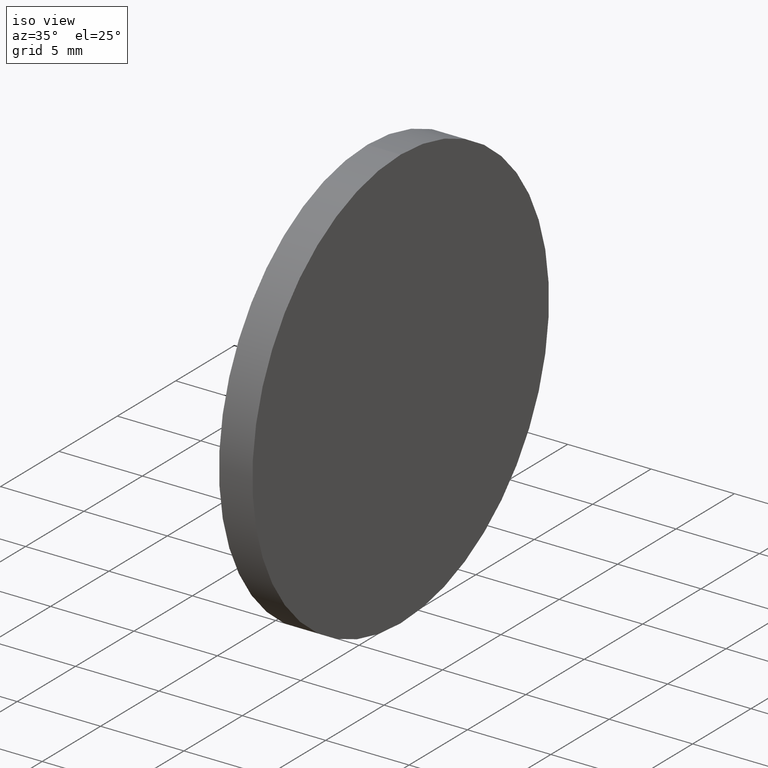
[diagram: clean part render]
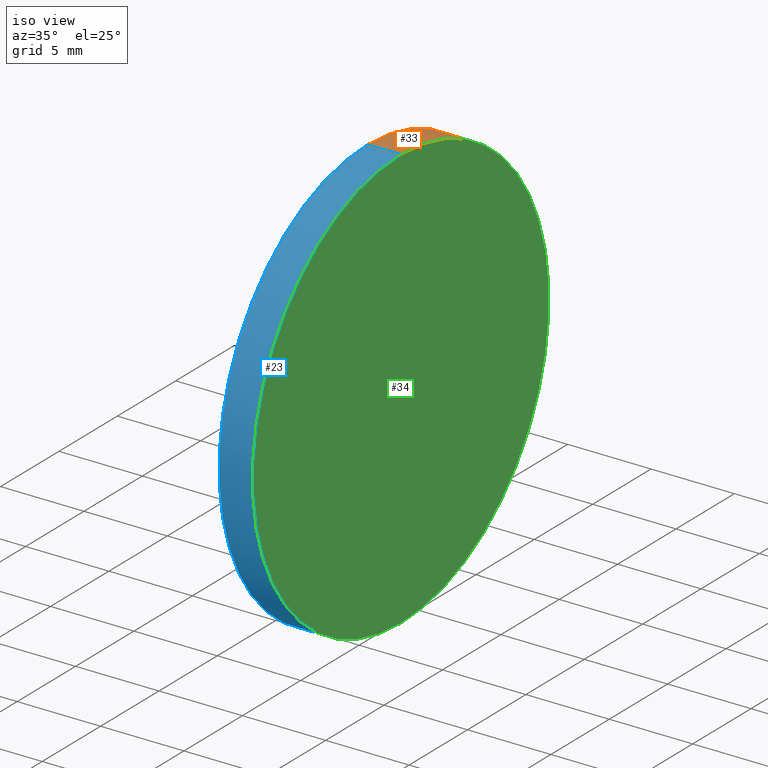
[diagram: same view with three faces highlighted in distinct colors, each labeled with its STEP entity id]
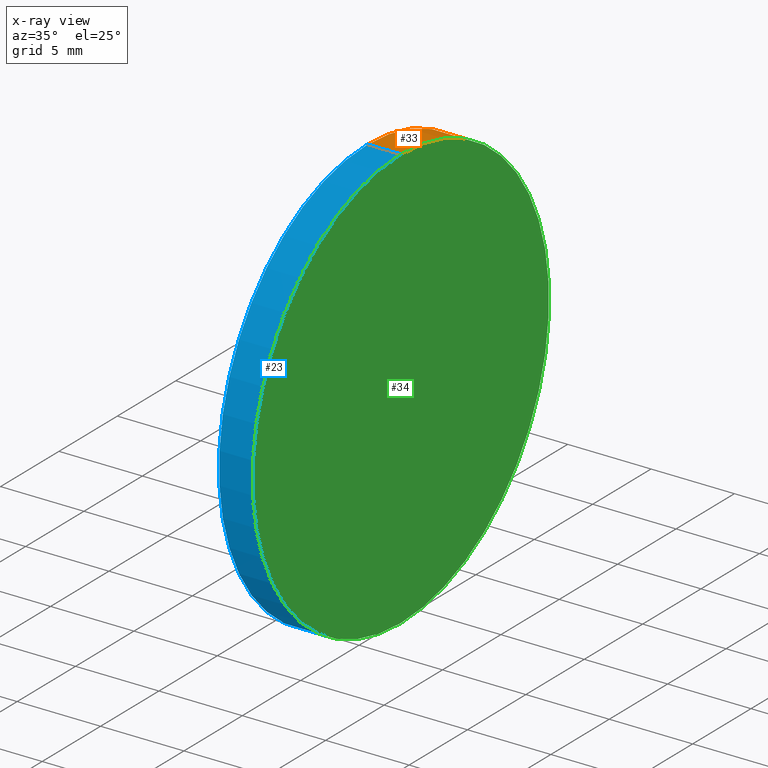
[diagram: x-ray of the same camera — body ghosted, the three highlighted faces saturated]
A machine part, iso view with three faces highlighted in distinct colors.
The next image is the same camera in x-ray (body ghosted, the three faces saturated) — at least one of them is partly hidden behind the body in this view.
Their STEP definitions:

[orange] entity #33 — the highlighted cylindrical surface (partial cylindrical patch) has radius 12.7 mm, axis along (-1, -0, -0).
#4 = ORIENTED_EDGE ( 'NONE', *, *, #132, .F. ) ;
#7 = ORIENTED_EDGE ( 'NONE', *, *, #89, .T. ) ;
#10 = AXIS2_PLACEMENT_3D ( 'NONE', #21, #105, #115 ) ;
#21 = CARTESIAN_POINT ( 'NONE',  ( 175.8774097584038100, 57.31014665613982100, 0.0000000000000000000 ) ) ;
#26 = DIRECTION ( 'NONE',  ( -1.000000000000000000, -0.0000000000000000000, -0.0000000000000000000 ) ) ;
#28 = VERTEX_POINT ( 'NONE', #59 ) ;
#33 = ADVANCED_FACE ( 'NONE', ( #47 ), #45, .T. ) ;
#35 = ORIENTED_EDGE ( 'NONE', *, *, #135, .F. ) ;
#36 = VERTEX_POINT ( 'NONE', #64 ) ;
#40 = VERTEX_POINT ( 'NONE', #99 ) ;
#43 = CIRCLE ( 'NONE', #133, 12.70000000000001000 ) ;
#45 = CYLINDRICAL_SURFACE ( 'NONE', #140, 12.70000000000001000 ) ;
#47 = FACE_OUTER_BOUND ( 'NONE', #117, .T. ) ;
#51 = DIRECTION ( 'NONE',  ( 0.0000000000000000000, 0.0000000000000000000, 1.000000000000000000 ) ) ;
#53 = DIRECTION ( 'NONE',  ( -1.000000000000000000, -0.0000000000000000000, -0.0000000000000000000 ) ) ;
#59 = CARTESIAN_POINT ( 'NONE',  ( 173.8774097584038100, 57.31014665613982100, -12.70000000000001000 ) ) ;
#63 = VECTOR ( 'NONE', #93, 1000.000000000000000 ) ;
#64 = CARTESIAN_POINT ( 'NONE',  ( 175.8774097584038100, 57.31014665613982100, 12.70000000000001000 ) ) ;
#65 = CARTESIAN_POINT ( 'NONE',  ( 168.2475137072466700, 57.31014665613982100, -12.70000000000001000 ) ) ;
#66 = LINE ( 'NONE', #100, #63 ) ;
#73 = LINE ( 'NONE', #65, #96 ) ;
#74 = DIRECTION ( 'NONE',  ( -1.000000000000000000, -0.0000000000000000000, -0.0000000000000000000 ) ) ;
#89 = EDGE_CURVE ( 'NONE', #36, #40, #95, .T. ) ;
#93 = DIRECTION ( 'NONE',  ( -1.000000000000000000, -0.0000000000000000000, -0.0000000000000000000 ) ) ;
#95 = CIRCLE ( 'NONE', #10, 12.70000000000001000 ) ;
#96 = VECTOR ( 'NONE', #53, 1000.000000000000000 ) ;
#97 = ORIENTED_EDGE ( 'NONE', *, *, #125, .T. ) ;
#98 = CARTESIAN_POINT ( 'NONE',  ( 173.8774097584038100, 57.31014665613982100, 0.0000000000000000000 ) ) ;
#99 = CARTESIAN_POINT ( 'NONE',  ( 175.8774097584038100, 57.31014665613982100, -12.70000000000001000 ) ) ;
#100 = CARTESIAN_POINT ( 'NONE',  ( 168.2475137072466700, 57.31014665613982100, 12.70000000000001000 ) ) ;
#105 = DIRECTION ( 'NONE',  ( -1.000000000000000000, -0.0000000000000000000, -0.0000000000000000000 ) ) ;
#110 = CARTESIAN_POINT ( 'NONE',  ( 168.2475137072466700, 57.31014665613982100, 0.0000000000000000000 ) ) ;
#114 = VERTEX_POINT ( 'NONE', #138 ) ;
#115 = DIRECTION ( 'NONE',  ( 0.0000000000000000000, 0.0000000000000000000, 1.000000000000000000 ) ) ;
#117 = EDGE_LOOP ( 'NONE', ( #7, #97, #35, #4 ) ) ;
#123 = DIRECTION ( 'NONE',  ( 0.0000000000000000000, 0.0000000000000000000, 1.000000000000000000 ) ) ;
#125 = EDGE_CURVE ( 'NONE', #40, #28, #73, .T. ) ;
#132 = EDGE_CURVE ( 'NONE', #36, #114, #66, .T. ) ;
#133 = AXIS2_PLACEMENT_3D ( 'NONE', #98, #26, #123 ) ;
#135 = EDGE_CURVE ( 'NONE', #114, #28, #43, .T. ) ;
#138 = CARTESIAN_POINT ( 'NONE',  ( 173.8774097584038100, 57.31014665613982100, 12.70000000000001000 ) ) ;
#140 = AXIS2_PLACEMENT_3D ( 'NONE', #110, #74, #51 ) ;

[blue] entity #23 — the highlighted cylindrical surface (partial cylindrical patch) has radius 12.7 mm, axis along (-1, -0, -0).
#11 = DIRECTION ( 'NONE',  ( 0.0000000000000000000, 0.0000000000000000000, 1.000000000000000000 ) ) ;
#14 = FACE_OUTER_BOUND ( 'NONE', #62, .T. ) ;
#15 = DIRECTION ( 'NONE',  ( -1.000000000000000000, -0.0000000000000000000, -0.0000000000000000000 ) ) ;
#18 = DIRECTION ( 'NONE',  ( 0.0000000000000000000, 0.0000000000000000000, 1.000000000000000000 ) ) ;
#23 = ADVANCED_FACE ( 'NONE', ( #14 ), #124, .T. ) ;
#28 = VERTEX_POINT ( 'NONE', #59 ) ;
#32 = ORIENTED_EDGE ( 'NONE', *, *, #101, .F. ) ;
#36 = VERTEX_POINT ( 'NONE', #64 ) ;
#37 = CIRCLE ( 'NONE', #68, 12.70000000000001000 ) ;
#40 = VERTEX_POINT ( 'NONE', #99 ) ;
#44 = ORIENTED_EDGE ( 'NONE', *, *, #132, .T. ) ;
#50 = CIRCLE ( 'NONE', #86, 12.70000000000001000 ) ;
#53 = DIRECTION ( 'NONE',  ( -1.000000000000000000, -0.0000000000000000000, -0.0000000000000000000 ) ) ;
#59 = CARTESIAN_POINT ( 'NONE',  ( 173.8774097584038100, 57.31014665613982100, -12.70000000000001000 ) ) ;
#62 = EDGE_LOOP ( 'NONE', ( #118, #69, #44, #32 ) ) ;
#63 = VECTOR ( 'NONE', #93, 1000.000000000000000 ) ;
#64 = CARTESIAN_POINT ( 'NONE',  ( 175.8774097584038100, 57.31014665613982100, 12.70000000000001000 ) ) ;
#65 = CARTESIAN_POINT ( 'NONE',  ( 168.2475137072466700, 57.31014665613982100, -12.70000000000001000 ) ) ;
#66 = LINE ( 'NONE', #100, #63 ) ;
#68 = AXIS2_PLACEMENT_3D ( 'NONE', #80, #15, #18 ) ;
#69 = ORIENTED_EDGE ( 'NONE', *, *, #139, .T. ) ;
#73 = LINE ( 'NONE', #65, #96 ) ;
#80 = CARTESIAN_POINT ( 'NONE',  ( 175.8774097584038100, 57.31014665613982100, 0.0000000000000000000 ) ) ;
#86 = AXIS2_PLACEMENT_3D ( 'NONE', #112, #137, #11 ) ;
#93 = DIRECTION ( 'NONE',  ( -1.000000000000000000, -0.0000000000000000000, -0.0000000000000000000 ) ) ;
#96 = VECTOR ( 'NONE', #53, 1000.000000000000000 ) ;
#99 = CARTESIAN_POINT ( 'NONE',  ( 175.8774097584038100, 57.31014665613982100, -12.70000000000001000 ) ) ;
#100 = CARTESIAN_POINT ( 'NONE',  ( 168.2475137072466700, 57.31014665613982100, 12.70000000000001000 ) ) ;
#101 = EDGE_CURVE ( 'NONE', #28, #114, #50, .T. ) ;
#108 = CARTESIAN_POINT ( 'NONE',  ( 168.2475137072466700, 57.31014665613982100, 0.0000000000000000000 ) ) ;
#109 = DIRECTION ( 'NONE',  ( 0.0000000000000000000, 0.0000000000000000000, 1.000000000000000000 ) ) ;
#112 = CARTESIAN_POINT ( 'NONE',  ( 173.8774097584038100, 57.31014665613982100, 0.0000000000000000000 ) ) ;
#113 = AXIS2_PLACEMENT_3D ( 'NONE', #108, #120, #109 ) ;
#114 = VERTEX_POINT ( 'NONE', #138 ) ;
#118 = ORIENTED_EDGE ( 'NONE', *, *, #125, .F. ) ;
#120 = DIRECTION ( 'NONE',  ( -1.000000000000000000, -0.0000000000000000000, -0.0000000000000000000 ) ) ;
#124 = CYLINDRICAL_SURFACE ( 'NONE', #113, 12.70000000000001000 ) ;
#125 = EDGE_CURVE ( 'NONE', #40, #28, #73, .T. ) ;
#132 = EDGE_CURVE ( 'NONE', #36, #114, #66, .T. ) ;
#137 = DIRECTION ( 'NONE',  ( -1.000000000000000000, -0.0000000000000000000, -0.0000000000000000000 ) ) ;
#138 = CARTESIAN_POINT ( 'NONE',  ( 173.8774097584038100, 57.31014665613982100, 12.70000000000001000 ) ) ;
#139 = EDGE_CURVE ( 'NONE', #40, #36, #37, .T. ) ;

[green] entity #34 — the highlighted planar face has unit normal (-1, 0, -0).
#8 = DIRECTION ( 'NONE',  ( -0.0000000000000000000, 0.0000000000000000000, 1.000000000000000000 ) ) ;
#10 = AXIS2_PLACEMENT_3D ( 'NONE', #21, #105, #115 ) ;
#15 = DIRECTION ( 'NONE',  ( -1.000000000000000000, -0.0000000000000000000, -0.0000000000000000000 ) ) ;
#18 = DIRECTION ( 'NONE',  ( 0.0000000000000000000, 0.0000000000000000000, 1.000000000000000000 ) ) ;
#21 = CARTESIAN_POINT ( 'NONE',  ( 175.8774097584038100, 57.31014665613982100, 0.0000000000000000000 ) ) ;
#34 = ADVANCED_FACE ( 'NONE', ( #70 ), #104, .F. ) ;
#36 = VERTEX_POINT ( 'NONE', #64 ) ;
#37 = CIRCLE ( 'NONE', #68, 12.70000000000001000 ) ;
#40 = VERTEX_POINT ( 'NONE', #99 ) ;
#64 = CARTESIAN_POINT ( 'NONE',  ( 175.8774097584038100, 57.31014665613982100, 12.70000000000001000 ) ) ;
#68 = AXIS2_PLACEMENT_3D ( 'NONE', #80, #15, #18 ) ;
#70 = FACE_OUTER_BOUND ( 'NONE', #91, .T. ) ;
#71 = ORIENTED_EDGE ( 'NONE', *, *, #89, .F. ) ;
#80 = CARTESIAN_POINT ( 'NONE',  ( 175.8774097584038100, 57.31014665613982100, 0.0000000000000000000 ) ) ;
#89 = EDGE_CURVE ( 'NONE', #36, #40, #95, .T. ) ;
#91 = EDGE_LOOP ( 'NONE', ( #71, #116 ) ) ;
#92 = CARTESIAN_POINT ( 'NONE',  ( 175.8774097584038100, 57.31014665613982100, 0.0000000000000000000 ) ) ;
#95 = CIRCLE ( 'NONE', #10, 12.70000000000001000 ) ;
#99 = CARTESIAN_POINT ( 'NONE',  ( 175.8774097584038100, 57.31014665613982100, -12.70000000000001000 ) ) ;
#104 = PLANE ( 'NONE',  #106 ) ;
#105 = DIRECTION ( 'NONE',  ( -1.000000000000000000, -0.0000000000000000000, -0.0000000000000000000 ) ) ;
#106 = AXIS2_PLACEMENT_3D ( 'NONE', #92, #128, #8 ) ;
#115 = DIRECTION ( 'NONE',  ( 0.0000000000000000000, 0.0000000000000000000, 1.000000000000000000 ) ) ;
#116 = ORIENTED_EDGE ( 'NONE', *, *, #139, .F. ) ;
#128 = DIRECTION ( 'NONE',  ( -1.000000000000000000, 0.0000000000000000000, -0.0000000000000000000 ) ) ;
#139 = EDGE_CURVE ( 'NONE', #40, #36, #37, .T. ) ;